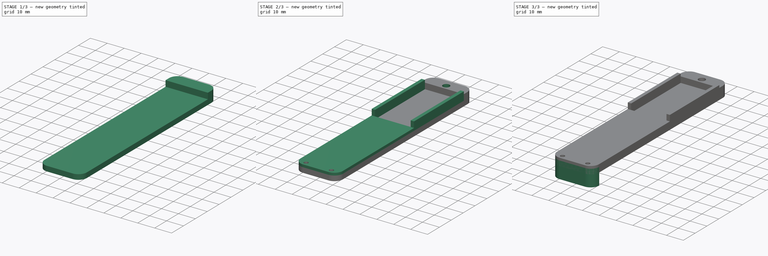
[diagram: build sequence overview — one tinted view per stage of 3, left to right]
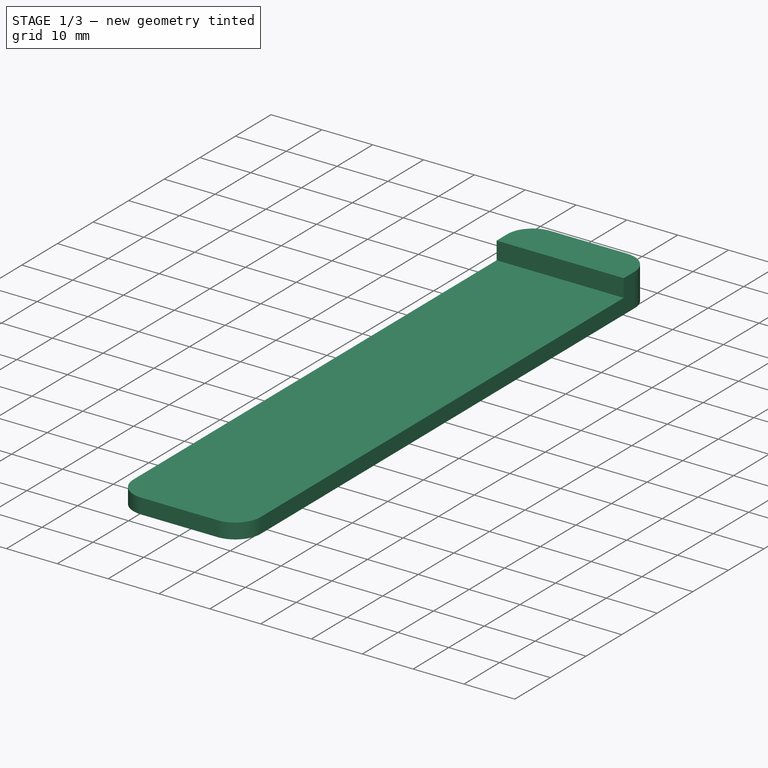
[diagram: stage 1 of 3 — iso view after this stage's code; geometry added in this stage tinted green]
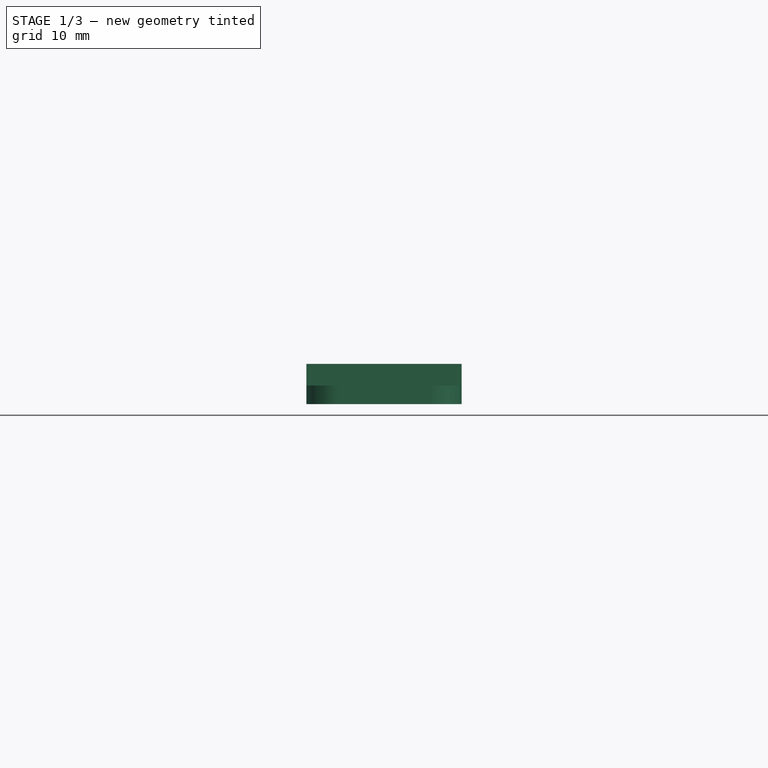
[diagram: stage 1 of 3 — front view after this stage's code; geometry added in this stage tinted green]
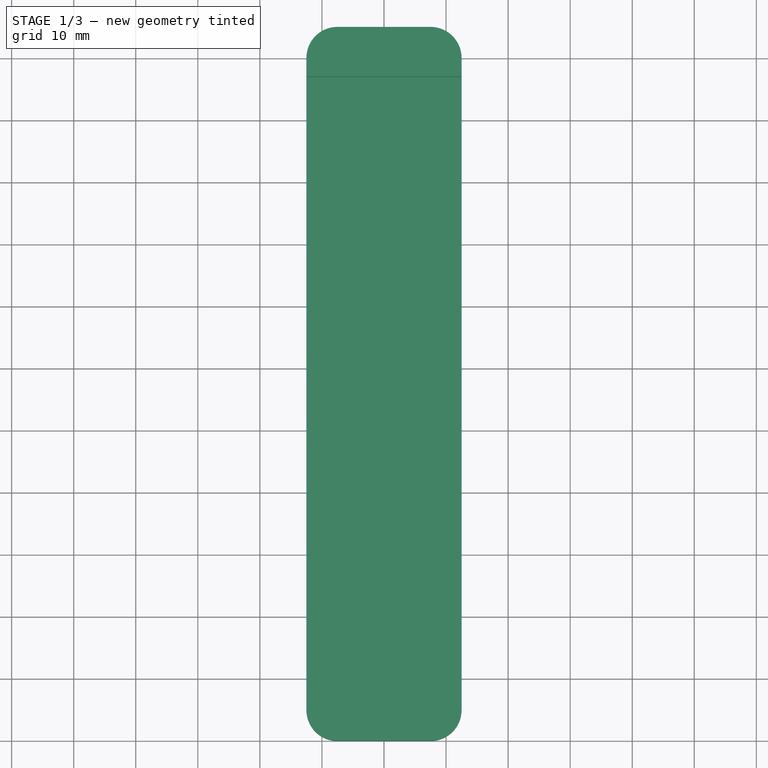
[diagram: stage 1 of 3 — top view after this stage's code; geometry added in this stage tinted green]
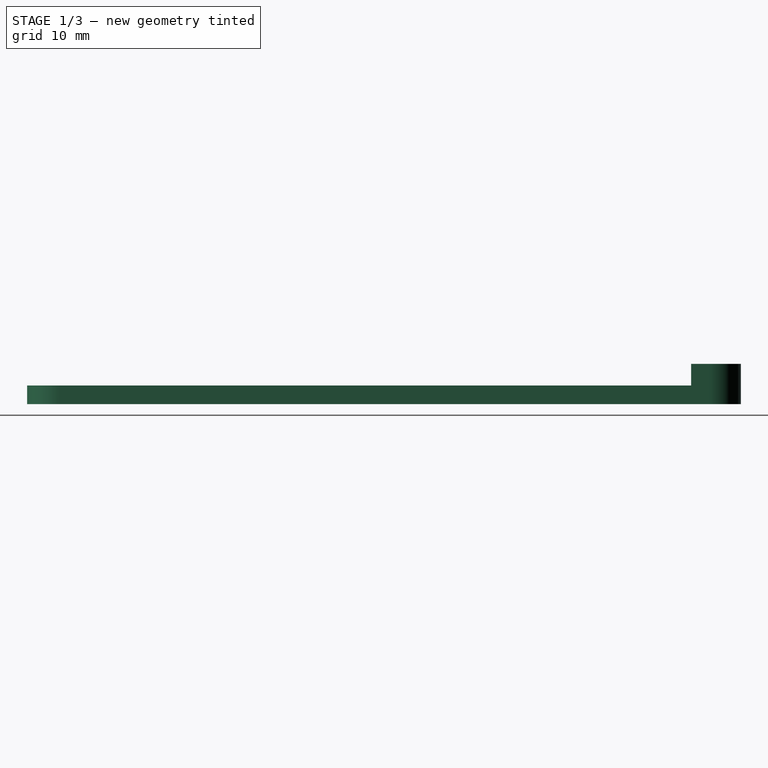
[diagram: stage 1 of 3 — right view after this stage's code; geometry added in this stage tinted green]
FCSTD DOCUMENT  (FreeCAD 1.0R39109 (Git))
Label: Pusher
License: All rights reserved
LicenseURL: http://en.wikipedia.org/wiki/All_rights_reserved
objects: Sketcher::SketchObject×7, PartDesign::Pad×5, PartDesign::Pocket×2, PartDesign::Body×2
note: 37 computed .brp shape members not serialized (recipe doc carries the construction recipe); baked Part::Feature solids carry a one-line shape summary decoded from their .brp

FEATURE [Sketcher::SketchObject] Sketch
  ArcFitTolerance = 1e-06
  AttachmentSupport = -> [XY_Plane]
  FullyConstrained = true
  MakeInternals = false
  MapMode = 5
  sketch-geometry (10):
    g0: LineSegment StartX=-12.5 StartY=1e-15 StartZ=0 EndX=-12.5 EndY=-105 EndZ=0
    g1: LineSegment StartX=-7.5 StartY=-110 StartZ=0 EndX=7.5 EndY=-110 EndZ=0
    g2: LineSegment StartX=12.5 StartY=-105 StartZ=0 EndX=12.5 EndY=0 EndZ=0
    g3: LineSegment StartX=7.5 StartY=5 StartZ=0 EndX=-7.5 EndY=5 EndZ=0
    g4: GeomPoint [constr] X=0 Y=5 Z=0
    g5: GeomPoint [constr] X=-2e-16 Y=-110 Z=0
    g6: ArcOfCircle CenterX=7.5 CenterY=-105 CenterZ=0 NormalX=0 NormalY=0 NormalZ=1 AngleXU=0 Radius=5 StartAngle=4.71239 EndAngle=6.28319
    g7: ArcOfCircle CenterX=-7.5 CenterY=-105 CenterZ=0 NormalX=0 NormalY=0 NormalZ=1 AngleXU=0 Radius=5 StartAngle=3.14159 EndAngle=4.71239
    g8: ArcOfCircle CenterX=-7.5 CenterY=4e-16 CenterZ=0 NormalX=0 NormalY=0 NormalZ=1 AngleXU=0 Radius=5 StartAngle=1.5708 EndAngle=3.14159
    g9: ArcOfCircle CenterX=7.5 CenterY=1e-16 CenterZ=0 NormalX=0 NormalY=0 NormalZ=1 AngleXU=0 Radius=5 StartAngle=0 EndAngle=1.5708
  constraints (22):
    c: Vertical(g0)
    c: Vertical(g2)
    c: Horizontal(g1)
    c: Horizontal(g3)
    c: Symmetric(g3,g3,g4)
    c: PointOnObject(g4,g-2)
    c: Symmetric(g1,g1,g5)
    c: DistanceY(g5,g-1) = 110
    c: DistanceY(g-1,g4) = 5
    c: Tangent(g6,g2) = -1.5708
    c: Tangent(g6,g1) = -1.5708
    c: Tangent(g7,g0) = -1.5708
    c: Tangent(g7,g1) = -1.5708
    c: Equal(g6,g7)
    c: Radius(g6) = 5
    c: DistanceX(g0,g2) = 25
    c: Equal(g8,g9)
    c: Equal(g9,g6)
    c: Tangent(g9,g3) = -1.5708
    c: Tangent(g9,g2) = -1.5708
    c: Tangent(g8,g0) = -1.5708
    c: Tangent(g8,g3) = -1.5708
FEATURE [PartDesign::Pad] Pad
  Direction = (0,0,1)
  Length = 3
  Length2 = 10
  Profile = -> Sketch
  ReferenceAxis = -> Sketch [N_Axis]
  Reversed = true
  Suppressed = false
  Type = 0
FEATURE [Sketcher::SketchObject] Sketch001
  ArcFitTolerance = 1e-06
  AttachmentSupport = -> [XY_Plane]
  FullyConstrained = true
  MakeInternals = false
  MapMode = 5
  sketch-geometry (5):
    g0: Circle CenterX=0 CenterY=0 CenterZ=0 NormalX=0 NormalY=0 NormalZ=1 AngleXU=0 Radius=2
    g1: LineSegment [constr] StartX=-7.5 StartY=-107.5 StartZ=0 EndX=7.5 EndY=-107.5 EndZ=0
    g2: GeomPoint [constr] X=0 Y=-107.5 Z=0
    g3: Circle CenterX=7.5 CenterY=-107.5 CenterZ=0 NormalX=0 NormalY=0 NormalZ=1 AngleXU=0 Radius=1.25
    g4: Circle CenterX=-7.5 CenterY=-107.5 CenterZ=0 NormalX=0 NormalY=0 NormalZ=1 AngleXU=0 Radius=1.25
  constraints (11):
    c: Coincident(g0,g-1)
    c: Diameter(g0) = 4
    c: Horizontal(g1)
    c: Symmetric(g1,g1,g2)
    c: PointOnObject(g2,g-2)
    c: DistanceX(g1,g1) = 15
    c: Coincident(g3,g1)
    c: Coincident(g4,g1)
    c: Equal(g4,g3)
    c: Diameter(g3) = 2.5
    c: DistanceY(g2,g0) = 107.5
FEATURE [Sketcher::SketchObject] Sketch002
  ArcFitTolerance = 1e-06
  AttachmentSupport = -> [XY_Plane]
  FullyConstrained = true
  MakeInternals = false
  MapMode = 5
  sketch-geometry (8):
    g0: LineSegment StartX=-12.5 StartY=5e-16 StartZ=0 EndX=-12.5 EndY=-3 EndZ=0
    g1: LineSegment StartX=-12.5 StartY=-3 StartZ=0 EndX=12.5 EndY=-3 EndZ=0
    g2: LineSegment StartX=12.5 StartY=-3 StartZ=0 EndX=12.5 EndY=0 EndZ=0
    g3: LineSegment StartX=7.5 StartY=5 StartZ=0 EndX=-7.5 EndY=5 EndZ=0
    g4: ArcOfCircle CenterX=-7.5 CenterY=-1e-16 CenterZ=0 NormalX=0 NormalY=0 NormalZ=1 AngleXU=0 Radius=5 StartAngle=1.5708 EndAngle=3.14159
    g5: ArcOfCircle CenterX=7.5 CenterY=-1e-16 CenterZ=0 NormalX=0 NormalY=0 NormalZ=1 AngleXU=0 Radius=5 StartAngle=0 EndAngle=1.5708
    g6: GeomPoint [constr] X=0 Y=-3 Z=0
    g7: GeomPoint [constr] X=-2e-16 Y=5 Z=0
  constraints (18):
    c: Coincident(g0,g1)
    c: Coincident(g1,g2)
    c: Vertical(g0)
    c: Vertical(g2)
    c: Horizontal(g1)
    c: Horizontal(g3)
    c: DistanceX(g1,g1) = 25
    c: Equal(g4,g5)
    c: Radius(g5) = 5
    c: Tangent(g4,g0) = -1.5708
    c: Tangent(g4,g3) = -1.5708
    c: Tangent(g5,g3) = -1.5708
    c: Tangent(g5,g2) = -1.5708
    c: Symmetric(g1,g1,g6)
    c: PointOnObject(g6,g-2)
    c: DistanceY(g6,g-1) = 3
    c: Symmetric(g3,g3,g7)
    c: DistanceY(g-1,g7) = 5
FEATURE [PartDesign::Pad] Pad001
  BaseFeature = -> Pad
  Direction = (0,0,1)
  Length = 3.5
  Length2 = 10
  Profile = -> Sketch002
  ReferenceAxis = -> Sketch002 [N_Axis]
  Suppressed = false
  Type = 0
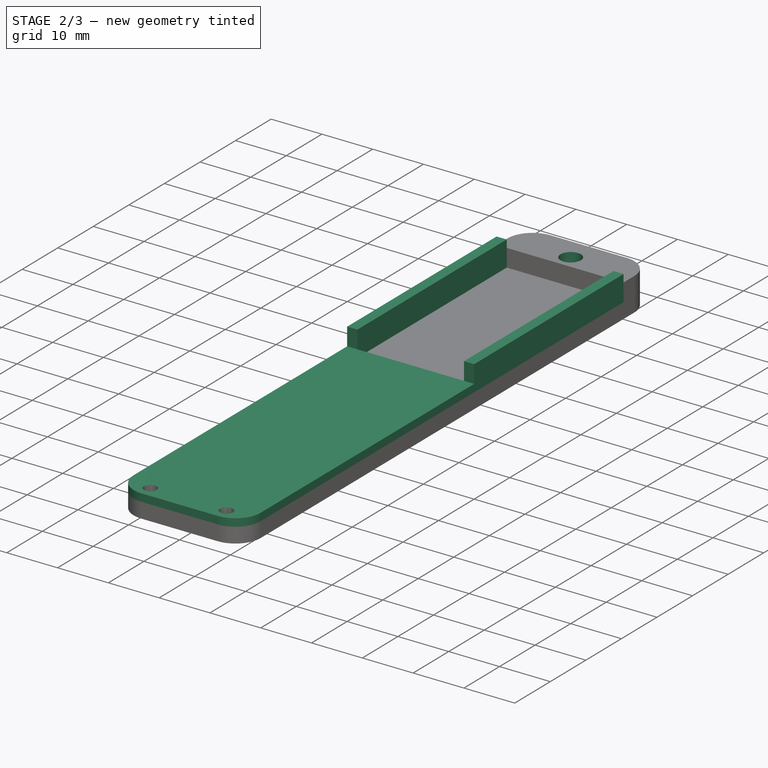
[diagram: stage 2 of 3 — iso view after this stage's code; geometry added in this stage tinted green]
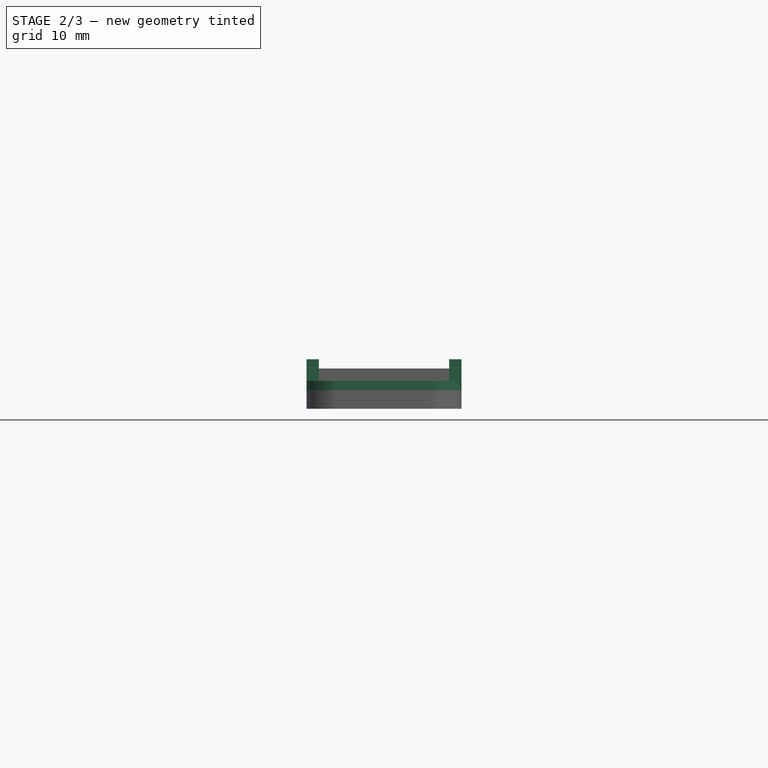
[diagram: stage 2 of 3 — front view after this stage's code; geometry added in this stage tinted green]
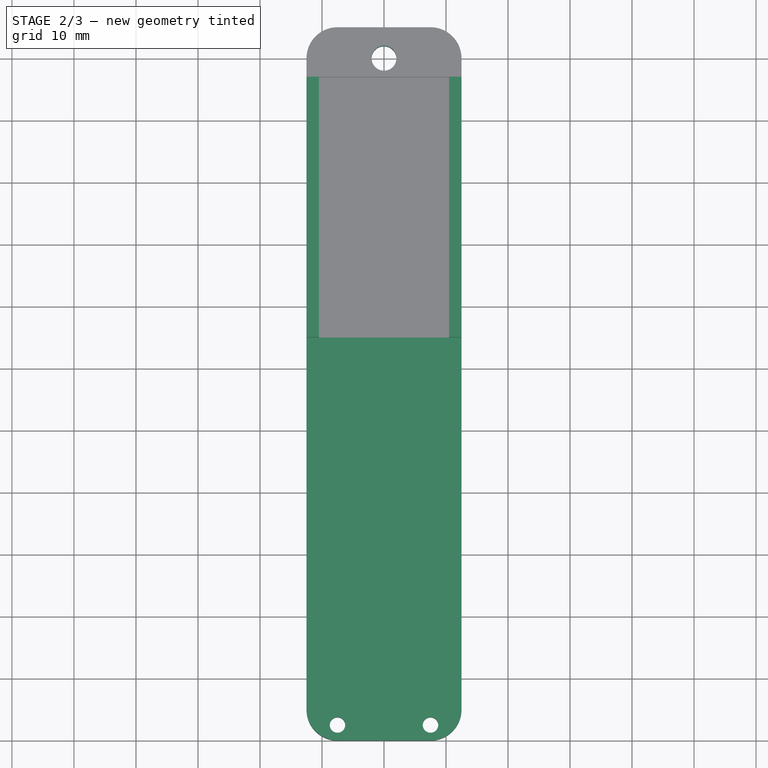
[diagram: stage 2 of 3 — top view after this stage's code; geometry added in this stage tinted green]
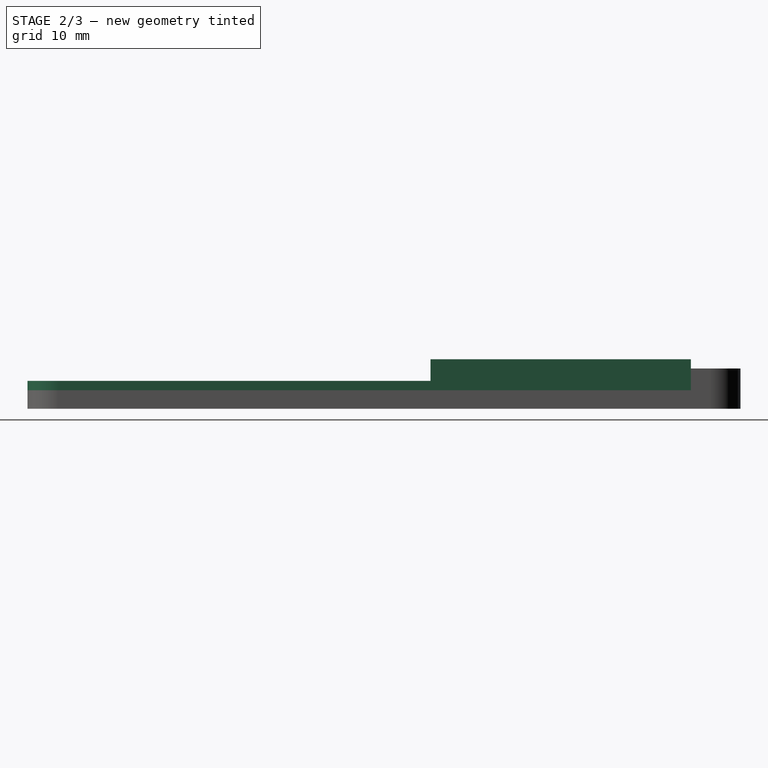
[diagram: stage 2 of 3 — right view after this stage's code; geometry added in this stage tinted green]
FEATURE [Sketcher::SketchObject] Sketch003
  ArcFitTolerance = 1e-06
  AttachmentSupport = -> [XY_Plane]
  FullyConstrained = true
  MakeInternals = false
  MapMode = 5
  sketch-geometry (8):
    g0: LineSegment StartX=-12.5 StartY=-45 StartZ=0 EndX=-12.5 EndY=-105 EndZ=0
    g1: LineSegment StartX=12.5 StartY=-105 StartZ=0 EndX=12.5 EndY=-45 EndZ=0
    g2: LineSegment StartX=12.5 StartY=-45 StartZ=0 EndX=-12.5 EndY=-45 EndZ=0
    g3: GeomPoint X=0 Y=-45 Z=0
    g4: LineSegment StartX=-7.5 StartY=-110 StartZ=0 EndX=7.5 EndY=-110 EndZ=0
    g5: GeomPoint [constr] X=0 Y=-110 Z=0
    g6: ArcOfCircle CenterX=-7.5 CenterY=-105 CenterZ=0 NormalX=0 NormalY=0 NormalZ=1 AngleXU=0 Radius=5 StartAngle=3.14159 EndAngle=4.71239
    g7: ArcOfCircle CenterX=7.5 CenterY=-105 CenterZ=0 NormalX=0 NormalY=0 NormalZ=1 AngleXU=0 Radius=5 StartAngle=4.71239 EndAngle=6.28319
  constraints (19):
    c: Coincident(g1,g2)
    c: Coincident(g2,g0)
    c: Vertical(g0)
    c: Vertical(g1)
    c: Horizontal(g2)
    c: Symmetric(g2,g2,g3)
    c: PointOnObject(g3,g-2)
    c: DistanceX(g0,g1) = 25
    c: DistanceY(g3,g-1) = 45
    c: Horizontal(g4)
    c: Symmetric(g4,g4,g5)
    c: PointOnObject(g5,g-2)
    c: Coincident(g7,g4)
    c: DistanceY(g5,g-1) = 110
    c: Tangent(g7,g1) = -1.5708
    c: Tangent(g6,g0) = -1.5708
    c: Equal(g6,g7)
    c: Radius(g7) = 5
    c: Tangent(g6,g4) = -1.5708
FEATURE [PartDesign::Pad] Pad002
  BaseFeature = -> Pad001
  Direction = (0,0,1)
  Length = 1.5
  Length2 = 10
  Profile = -> Sketch003
  ReferenceAxis = -> Sketch003 [N_Axis]
  Suppressed = false
  Type = 0
FEATURE [PartDesign::Pocket] Pocket
  BaseFeature = -> Pad002
  Direction = (0,0,-1)
  Length = 5
  Length2 = 5
  Midplane = true
  Profile = -> Sketch001
  ReferenceAxis = -> Sketch001 [N_Axis]
  Suppressed = false
  Type = 1
FEATURE [PartDesign::Body] Body001  label="Tab"
  AllowCompound = false
  Group = -> [Sketch005,Pad003,Sketch007,Pocket001]
  Origin = -> Origin001
  Placement = pos=(0,0,-3) rot=(0,0,1;0rad)
  Tip = -> Pocket001
FEATURE [Sketcher::SketchObject] Sketch008
  ArcFitTolerance = 1e-06
  AttachmentSupport = -> [XY_Plane]
  FullyConstrained = true
  MakeInternals = false
  MapMode = 5
  sketch-geometry (10):
    g0: LineSegment StartX=-12.5 StartY=-3 StartZ=0 EndX=-12.5 EndY=-45 EndZ=0
    g1: LineSegment StartX=-12.5 StartY=-45 StartZ=0 EndX=-10.5 EndY=-45 EndZ=0
    g2: LineSegment StartX=-10.5 StartY=-45 StartZ=0 EndX=-10.5 EndY=-3 EndZ=0
    g3: LineSegment StartX=-10.5 StartY=-3 StartZ=0 EndX=-12.5 EndY=-3 EndZ=0
    g4: LineSegment StartX=12.5 StartY=-3 StartZ=0 EndX=10.5 EndY=-3 EndZ=0
    g5: LineSegment StartX=10.5 StartY=-3 StartZ=0 EndX=10.5 EndY=-45 EndZ=0
    g6: LineSegment StartX=10.5 StartY=-45 StartZ=0 EndX=12.5 EndY=-45 EndZ=0
    g7: LineSegment StartX=12.5 StartY=-45 StartZ=0 EndX=12.5 EndY=-3 EndZ=0
    g8: LineSegment [constr] StartX=-10.5 StartY=-3 StartZ=0 EndX=10.5 EndY=-3 EndZ=0
    g9: GeomPoint [constr] X=0 Y=-3 Z=0
  constraints (27):
    c: Coincident(g0,g1)
    c: Coincident(g1,g2)
    c: Coincident(g2,g3)
    c: Coincident(g3,g0)
    c: Vertical(g0)
    c: Vertical(g2)
    c: Horizontal(g1)
    c: Horizontal(g3)
    c: Coincident(g4,g5)
    c: Coincident(g5,g6)
    c: Coincident(g6,g7)
    c: Coincident(g7,g4)
    c: Horizontal(g4)
    c: Horizontal(g6)
    c: Vertical(g5)
    c: Vertical(g7)
    c: Coincident(g8,g2)
    c: Coincident(g8,g4)
    c: Horizontal(g8)
    c: Symmetric(g8,g8,g9)
    c: PointOnObject(g9,g-2)
    c: DistanceX(g8,g8) = 21
    c: DistanceX(g0,g6) = 25
    c: Equal(g3,g4)
    c: DistanceY(g9,g-1) = 3
    c: DistanceY(g5,g5) = 42
    c: DistanceY(g1,g5) = 0
FEATURE [PartDesign::Pad] Pad004
  BaseFeature = -> Pocket
  Direction = (0,0,1)
  Length = 5
  Length2 = 10
  Profile = -> Sketch008
  ReferenceAxis = -> Sketch008 [N_Axis]
  Suppressed = false
  Type = 0
FEATURE [PartDesign::Body] Body
  AllowCompound = false
  Group = -> [Sketch,Pad,Sketch001,Sketch002,Pad001,Sketch003,Pad002,Pocket,Sketch008,Pad004]
  Origin = -> Origin
  Tip = -> Pad004
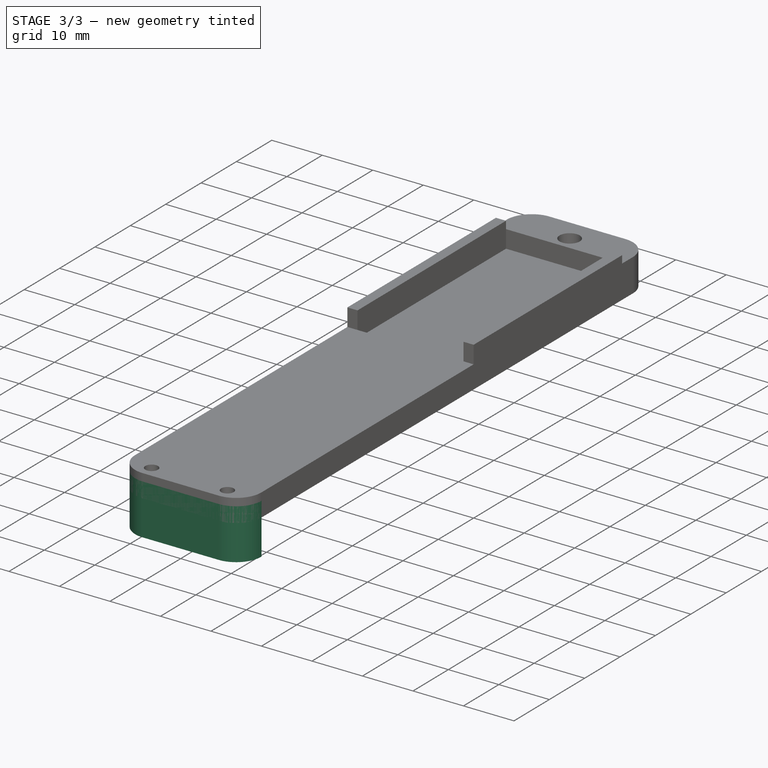
[diagram: stage 3 of 3 — iso view after this stage's code; geometry added in this stage tinted green]
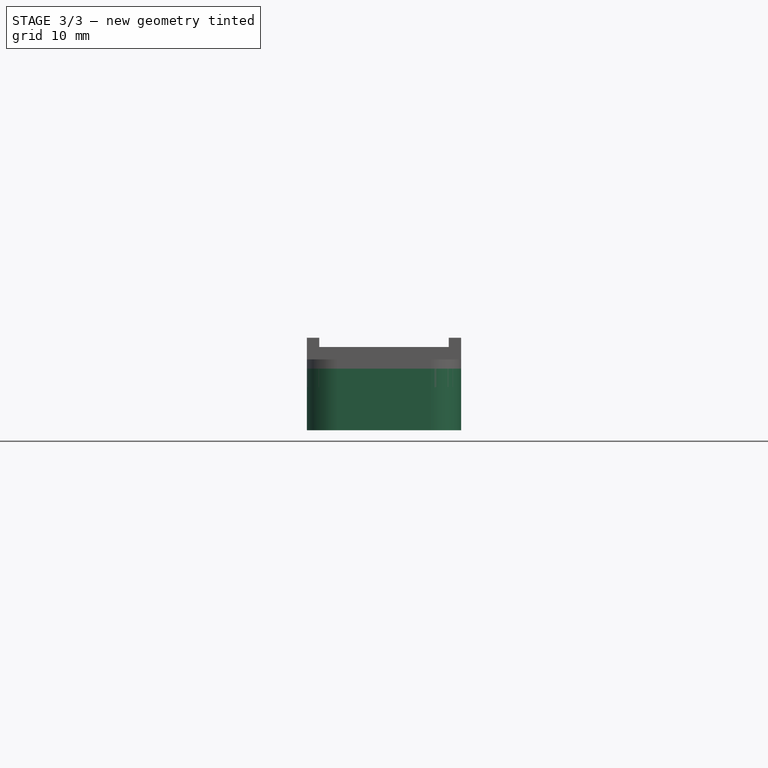
[diagram: stage 3 of 3 — front view after this stage's code; geometry added in this stage tinted green]
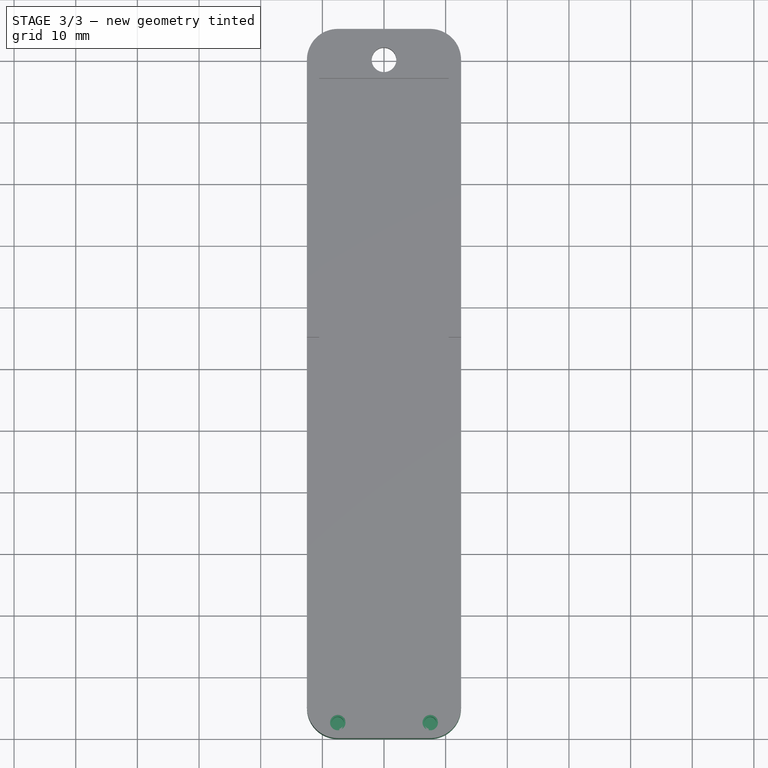
[diagram: stage 3 of 3 — top view after this stage's code; geometry added in this stage tinted green]
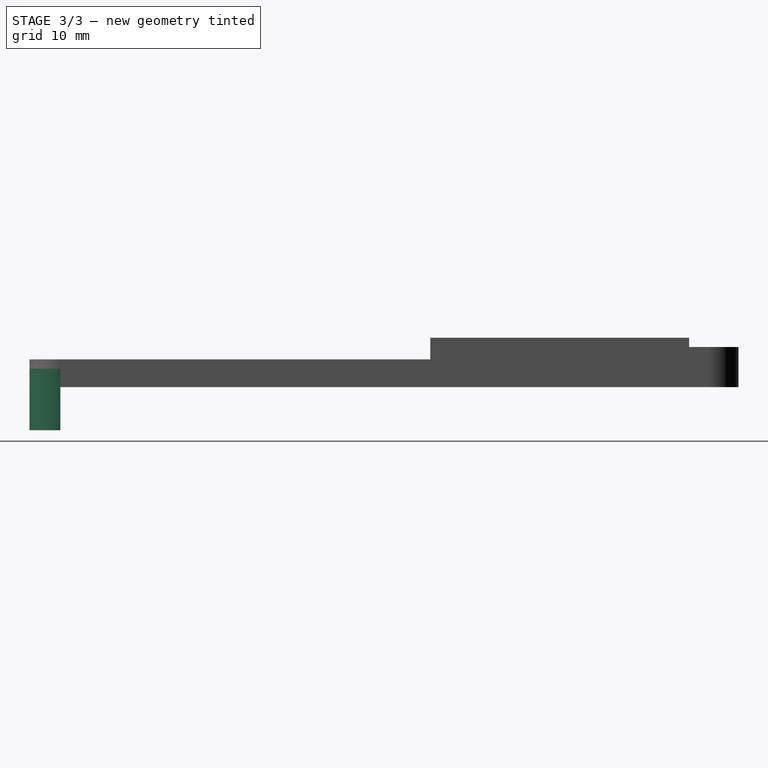
[diagram: stage 3 of 3 — right view after this stage's code; geometry added in this stage tinted green]
FEATURE [Sketcher::SketchObject] Sketch005
  ArcFitTolerance = 1e-06
  AttachmentSupport = -> [XY_Plane001]
  FullyConstrained = true
  MakeInternals = false
  MapMode = 5
  sketch-geometry (5):
    g0: LineSegment StartX=-7.5 StartY=-110 StartZ=0 EndX=7.5 EndY=-110 EndZ=0
    g1: LineSegment StartX=12.5 StartY=-105 StartZ=0 EndX=-12.5 EndY=-105 EndZ=0
    g2: GeomPoint X=0 Y=-105 Z=0
    g3: ArcOfCircle CenterX=-7.5 CenterY=-105 CenterZ=0 NormalX=0 NormalY=0 NormalZ=1 AngleXU=0 Radius=5 StartAngle=3.14159 EndAngle=4.71239
    g4: ArcOfCircle CenterX=7.5 CenterY=-105 CenterZ=0 NormalX=0 NormalY=0 NormalZ=1 AngleXU=0 Radius=5 StartAngle=4.71239 EndAngle=6.28319
  constraints (13):
    c: Horizontal(g0)
    c: Horizontal(g1)
    c: Symmetric(g1,g1,g2)
    c: PointOnObject(g2,g-2)
    c: DistanceX(g1,g1) = 25
    c: Equal(g4,g3)
    c: Radius(g4) = 5
    c: Tangent(g3,g0) = -1.5708
    c: Tangent(g4,g0) = -1.5708
    c: Coincident(g3,g1)
    c: Coincident(g4,g1)
    c: PointOnObject(g4,g1)
    c: DistanceY(g2,g-1) = 105
FEATURE [PartDesign::Pad] Pad003
  Direction = (0,0,1)
  Length = 10
  Length2 = 10
  Profile = -> Sketch005
  ReferenceAxis = -> Sketch005 [N_Axis]
  Reversed = true
  Suppressed = false
  Type = 0
FEATURE [Sketcher::SketchObject] Sketch007
  ArcFitTolerance = 1e-06
  AttachmentSupport = -> [XY_Plane001]
  FullyConstrained = true
  MakeInternals = false
  MapMode = 5
  sketch-geometry (4):
    g0: LineSegment [constr] StartX=-7.5 StartY=-107.5 StartZ=0 EndX=7.5 EndY=-107.5 EndZ=0
    g1: GeomPoint [constr] X=0 Y=-107.5 Z=0
    g2: Circle CenterX=7.5 CenterY=-107.5 CenterZ=0 NormalX=0 NormalY=0 NormalZ=1 AngleXU=0 Radius=1
    g3: Circle CenterX=-7.5 CenterY=-107.5 CenterZ=0 NormalX=0 NormalY=0 NormalZ=1 AngleXU=0 Radius=1
  constraints (9):
    c: Horizontal(g0)
    c: Symmetric(g0,g0,g1)
    c: PointOnObject(g1,g-2)
    c: DistanceX(g0,g0) = 15
    c: Coincident(g2,g0)
    c: Coincident(g3,g0)
    c: Equal(g3,g2)
    c: Diameter(g2) = 2
    c: DistanceY(g1,g-1) = 107.5
FEATURE [PartDesign::Pocket] Pocket001
  BaseFeature = -> Pad003
  Direction = (0,0,-1)
  Length = 5
  Length2 = 5
  Profile = -> Sketch007
  ReferenceAxis = -> Sketch007 [N_Axis]
  Suppressed = false
  Type = 0
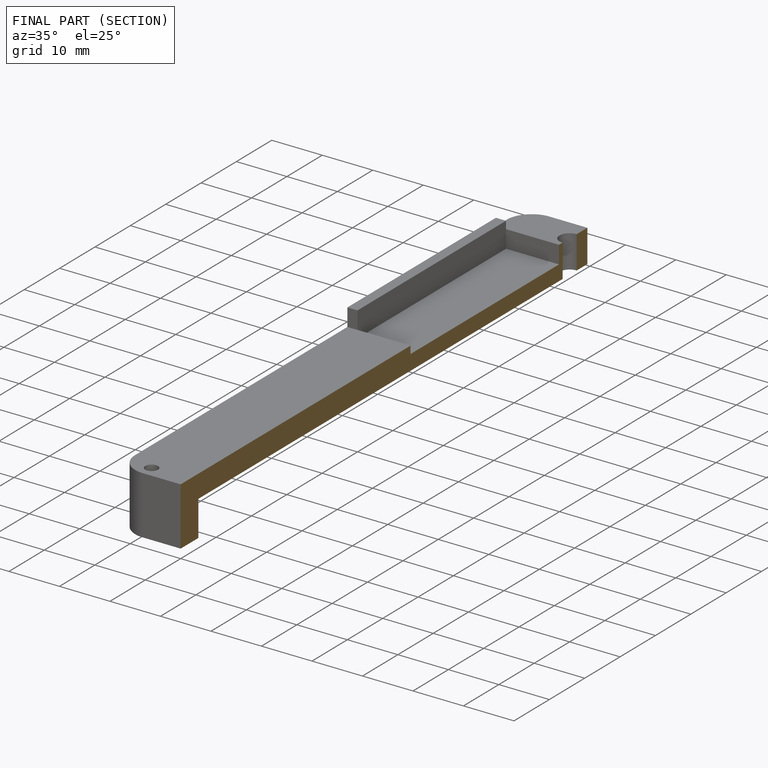
[diagram: finished part — half-section view (interior)]
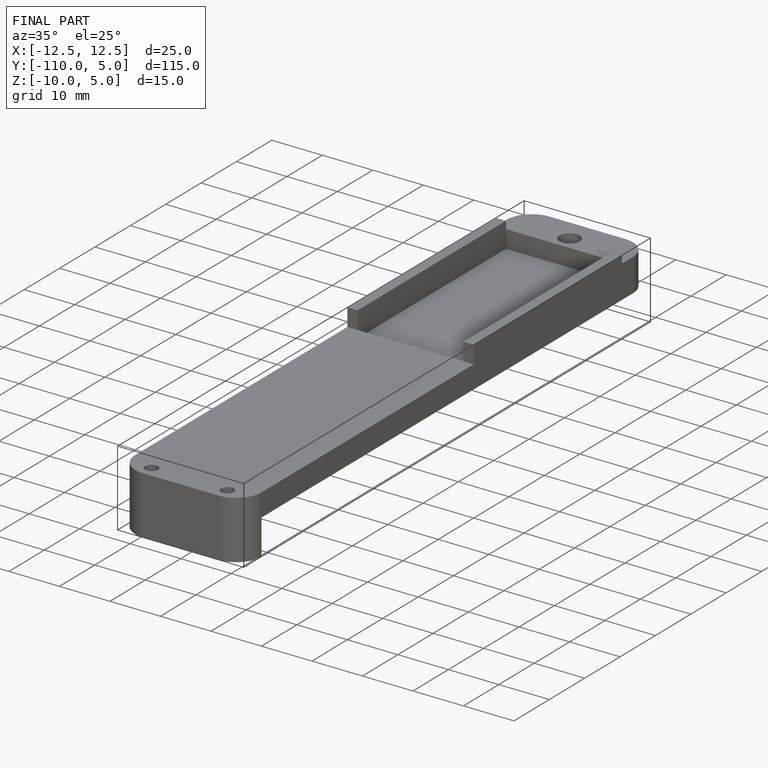
[diagram: finished part — iso view with bounding-box wireframe]
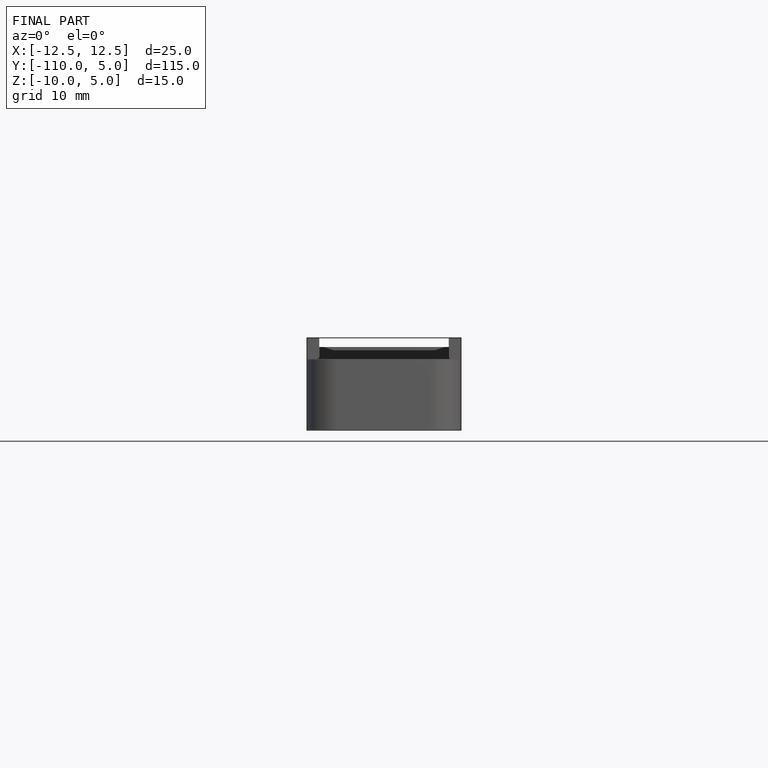
[diagram: finished part — front view with bounding-box wireframe]
